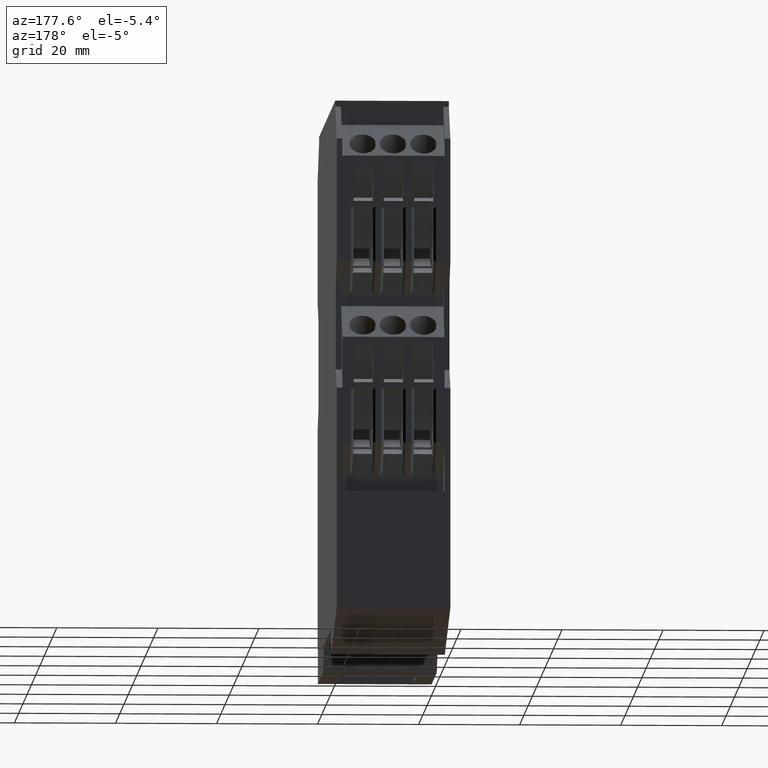
[diagram: clean part render]
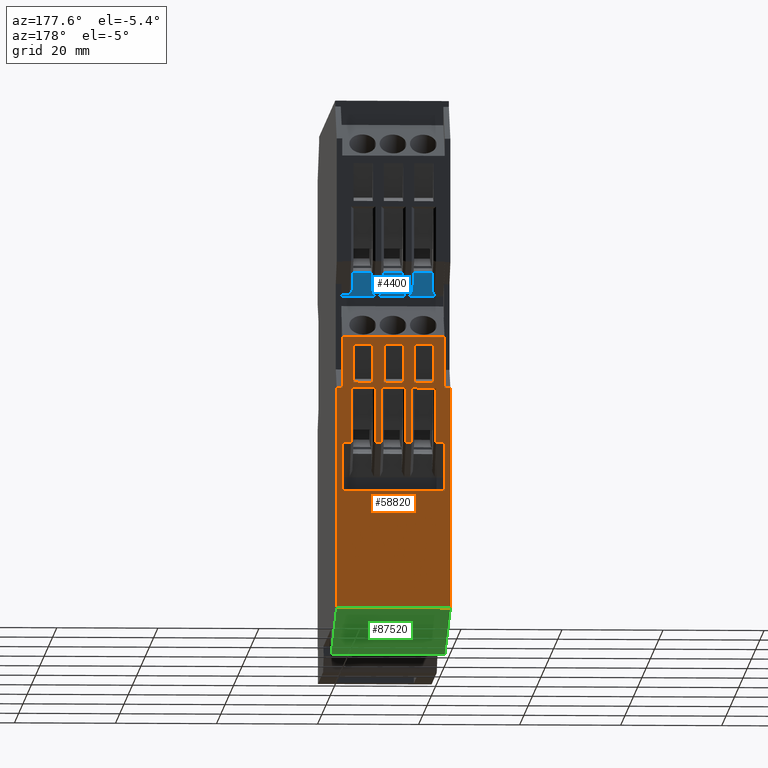
[diagram: same view with three faces highlighted in distinct colors, each labeled with its STEP entity id]
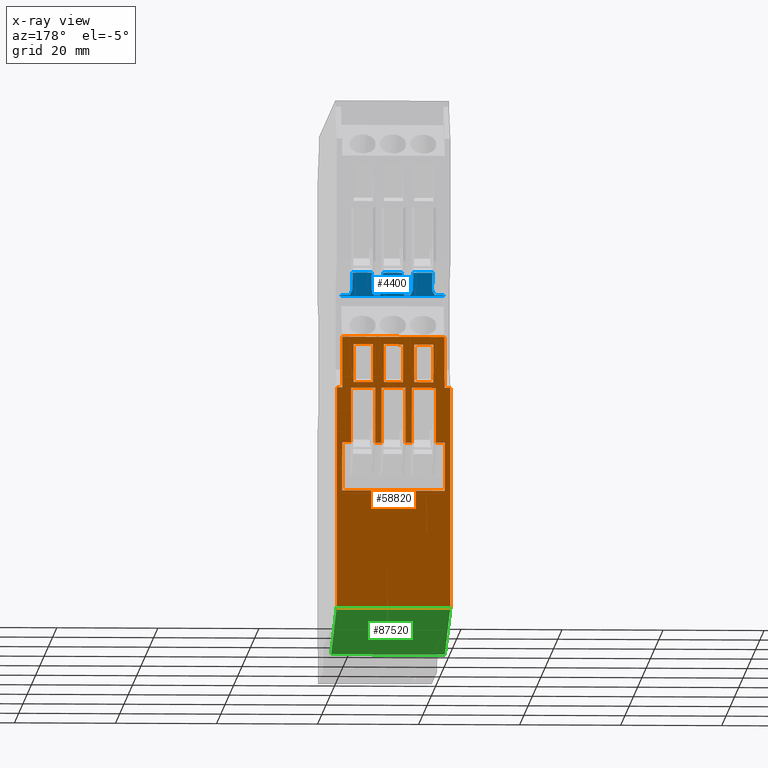
[diagram: x-ray of the same camera — body ghosted, the three highlighted faces saturated]
A machine part, auxiliary view with three faces highlighted in distinct colors.
The next image is the same camera in x-ray (body ghosted, the three faces saturated) — at least one of them is partly hidden behind the body in this view.
Their STEP definitions:

[orange] entity #58820 — the highlighted planar face has unit normal (0, -1, 0).
#1480=CARTESIAN_POINT('',(-11.1893993066638,41.84876394652,
62.3072887580302));
#1490=VERTEX_POINT('',#1480);
#1520=CARTESIAN_POINT('',(-11.1893993066638,41.848763946524,
111.500000000001));
#1530=DIRECTION('',(0.,-3.54716256367738E-14,-1.));
#1540=VECTOR('',#1530,1.);
#1550=LINE('',#1520,#1540);
#1560=CARTESIAN_POINT('',(-11.1893993066638,41.8487639465216,
105.999999999998));
#1570=VERTEX_POINT('',#1560);
#1580=EDGE_CURVE('',#1570,#1490,#1550,.T.);
#55920=CARTESIAN_POINT('',(-11.1893993066638,41.84876394652,
62.3072887580302));
#55930=DIRECTION('',(0.,-1.,3.54716256367738E-14));
#55940=DIRECTION('',(0.,-3.54716256367738E-14,-1.));
#55950=AXIS2_PLACEMENT_3D('',#55920,#55930,#55940);
#55960=PLANE('',#55950);
#55970=CARTESIAN_POINT('',(1.96060069333618,41.8487639465213,0.));
#55980=DIRECTION('',(0.,3.54161144855425E-14,1.));
#55990=VECTOR('',#55980,1.);
#56000=LINE('',#55970,#55990);
#56010=CARTESIAN_POINT('',(1.96060069333618,41.8487639465251,
107.089162713876));
#56020=VERTEX_POINT('',#56010);
#56030=CARTESIAN_POINT('',(1.96060069333618,41.8487639465254,
114.607301309887));
#56040=VERTEX_POINT('',#56030);
#56050=EDGE_CURVE('',#56020,#56040,#56000,.T.);
#56060=ORIENTED_EDGE('',*,*,#56050,.T.);
#56070=CARTESIAN_POINT('',(0.,41.8487639465251,107.089162713876));
#56080=DIRECTION('',(-1.,1.78300435397055E-18,3.46944695195352E-18));
#56090=VECTOR('',#56080,1.);
#56100=LINE('',#56070,#56090);
#56110=CARTESIAN_POINT('',(-1.83939930666382,41.8487639465251,
107.089162713876));
#56120=VERTEX_POINT('',#56110);
#56130=EDGE_CURVE('',#56020,#56120,#56100,.T.);
#56140=ORIENTED_EDGE('',*,*,#56130,.F.);
#56150=CARTESIAN_POINT('',(-1.83939930666382,41.8487639465213,0.));
#56160=DIRECTION('',(0.,-3.54161144855425E-14,-1.));
#56170=VECTOR('',#56160,1.);
#56180=LINE('',#56150,#56170);
#56190=CARTESIAN_POINT('',(-1.83939930666382,41.8487639465254,
114.607301309887));
#56200=VERTEX_POINT('',#56190);
#56210=EDGE_CURVE('',#56200,#56120,#56180,.T.);
#56220=ORIENTED_EDGE('',*,*,#56210,.T.);
#56230=CARTESIAN_POINT('',(0.,41.8487639465254,114.607301309887));
#56240=DIRECTION('',(-1.,1.7830043539695E-18,-2.61895788750554E-17));
#56250=VECTOR('',#56240,1.);
#56260=LINE('',#56230,#56250);
#56270=EDGE_CURVE('',#56040,#56200,#56260,.T.);
#56280=ORIENTED_EDGE('',*,*,#56270,.T.);
#56290=EDGE_LOOP('',(#56280,#56220,#56140,#56060));
#56300=FACE_BOUND('',#56290,.T.);
#56310=CARTESIAN_POINT('',(0.,41.8487639465975,95.1094070233404));
#56320=DIRECTION('',(1.,-1.78300435397005E-18,3.46944695195384E-18));
#56330=VECTOR('',#56320,1.);
#56340=LINE('',#56310,#56330);
#56350=CARTESIAN_POINT('',(-10.0893993066638,41.8487639465212,
95.1094070232745));
#56360=VERTEX_POINT('',#56350);
#56370=CARTESIAN_POINT('',(-8.33939930666381,41.8487639465975,
95.1094070233404));
#56380=VERTEX_POINT('',#56370);
#56390=EDGE_CURVE('',#56360,#56380,#56340,.T.);
#56400=ORIENTED_EDGE('',*,*,#56390,.F.);
#56410=CARTESIAN_POINT('',(-8.33939930659106,41.8487639465213,0.));
#56420=DIRECTION('',(7.80625564189552E-16,3.54161144855425E-14,1.));
#56430=VECTOR('',#56420,1.);
#56440=LINE('',#56410,#56430);
#56450=CARTESIAN_POINT('',(-8.33939930659097,41.8487639465251,
105.992896055162));
#56460=VERTEX_POINT('',#56450);
#56470=EDGE_CURVE('',#56380,#56460,#56440,.T.);
#56480=ORIENTED_EDGE('',*,*,#56470,.F.);
#56490=CARTESIAN_POINT('',(0.,41.8487639465251,105.992896055111));
#56500=DIRECTION('',(-1.,1.78300435397055E-18,3.46944695195378E-18));
#56510=VECTOR('',#56500,1.);
#56520=LINE('',#56490,#56510);
#56530=CARTESIAN_POINT('',(-3.53939930673666,41.8487639465251,
105.992896055162));
#56540=VERTEX_POINT('',#56530);
#56550=EDGE_CURVE('',#56540,#56460,#56520,.T.);
#56560=ORIENTED_EDGE('',*,*,#56550,.T.);
#56570=CARTESIAN_POINT('',(-3.53939930673657,41.8487639465213,0.));
#56580=DIRECTION('',(7.73686670285644E-16,-3.54161144855425E-14,-1.));
#56590=VECTOR('',#56580,1.);
#56600=LINE('',#56570,#56590);
#56610=CARTESIAN_POINT('',(-3.53939930666381,41.8487639465975,
95.1094070233404));
#56620=VERTEX_POINT('',#56610);
#56630=EDGE_CURVE('',#56540,#56620,#56600,.T.);
#56640=ORIENTED_EDGE('',*,*,#56630,.F.);
#56650=CARTESIAN_POINT('',(-2.33939930661493,41.8487639465647,
95.1094070233108));
#56660=VERTEX_POINT('',#56650);
#56670=EDGE_CURVE('',#56620,#56660,#56340,.T.);
#56680=ORIENTED_EDGE('',*,*,#56670,.F.);
#56690=CARTESIAN_POINT('',(-2.33939930659106,41.8487639465213,0.));
#56700=DIRECTION('',(-7.80625564189554E-16,-3.54161144855425E-14,-1.));
#56710=VECTOR('',#56700,1.);
#56720=LINE('',#56690,#56710);
#56730=CARTESIAN_POINT('',(-2.33939930659097,41.8487639465251,
105.992896055162));
#56740=VERTEX_POINT('',#56730);
#56750=EDGE_CURVE('',#56740,#56660,#56720,.T.);
#56760=ORIENTED_EDGE('',*,*,#56750,.T.);
#56770=CARTESIAN_POINT('',(0.,41.8487639465251,105.992896055111));
#56780=DIRECTION('',(-1.,1.78300435397055E-18,3.46944695195378E-18));
#56790=VECTOR('',#56780,1.);
#56800=LINE('',#56770,#56790);
#56810=CARTESIAN_POINT('',(2.46060069333618,41.8487639465251,
105.992896055111));
#56820=VERTEX_POINT('',#56810);
#56830=EDGE_CURVE('',#56820,#56740,#56800,.T.);
#56840=ORIENTED_EDGE('',*,*,#56830,.T.);
#56850=CARTESIAN_POINT('',(2.46060069326343,41.8487639465213,0.));
#56860=DIRECTION('',(7.73686670285647E-16,-3.54161144855425E-14,-1.));
#56870=VECTOR('',#56860,1.);
#56880=LINE('',#56850,#56870);
#56890=CARTESIAN_POINT('',(2.46060069333618,41.8487639465247,
95.1094070232087));
#56900=VERTEX_POINT('',#56890);
#56910=EDGE_CURVE('',#56820,#56900,#56880,.T.);
#56920=ORIENTED_EDGE('',*,*,#56910,.F.);
#56930=CARTESIAN_POINT('',(0.,41.8487639465247,95.1094070232087));
#56940=DIRECTION('',(-1.,1.78300435397055E-18,3.46944695195383E-18));
#56950=VECTOR('',#56940,1.);
#56960=LINE('',#56930,#56950);
#56970=CARTESIAN_POINT('',(3.66060069333618,41.8487639465247,
95.1094070232087));
#56980=VERTEX_POINT('',#56970);
#56990=EDGE_CURVE('',#56980,#56900,#56960,.T.);
#57000=ORIENTED_EDGE('',*,*,#56990,.T.);
#57010=CARTESIAN_POINT('',(3.66060069340895,41.8487639465213,0.));
#57020=DIRECTION('',(-7.80625564189554E-16,-3.54161144855425E-14,-1.));
#57030=VECTOR('',#57020,1.);
#57040=LINE('',#57010,#57030);
#57050=CARTESIAN_POINT('',(3.66060069333618,41.8487639465251,
105.992896055111));
#57060=VERTEX_POINT('',#57050);
#57070=EDGE_CURVE('',#57060,#56980,#57040,.T.);
#57080=ORIENTED_EDGE('',*,*,#57070,.T.);
#57090=CARTESIAN_POINT('',(0.,41.8487639465251,105.992896055111));
#57100=DIRECTION('',(-1.,1.78300435397055E-18,3.46944695195378E-18));
#57110=VECTOR('',#57100,1.);
#57120=LINE('',#57090,#57110);
#57130=CARTESIAN_POINT('',(8.46060069333619,41.8487639465251,
105.992896055111));
#57140=VERTEX_POINT('',#57130);
#57150=EDGE_CURVE('',#57140,#57060,#57120,.T.);
#57160=ORIENTED_EDGE('',*,*,#57150,.T.);
#57170=CARTESIAN_POINT('',(8.46060069326342,41.8487639465213,0.));
#57180=DIRECTION('',(7.73686670285646E-16,-3.54161144855425E-14,-1.));
#57190=VECTOR('',#57180,1.);
#57200=LINE('',#57170,#57190);
#57210=CARTESIAN_POINT('',(8.46060069328731,41.8487639465647,
95.1094070233108));
#57220=VERTEX_POINT('',#57210);
#57230=EDGE_CURVE('',#57140,#57220,#57200,.T.);
#57240=ORIENTED_EDGE('',*,*,#57230,.F.);
#57250=CARTESIAN_POINT('',(0.121201386672368,41.8487639465247,
95.1094070232746));
#57260=DIRECTION('',(1.,-1.7830043539703E-18,3.46944695195361E-18));
#57270=VECTOR('',#57260,1.);
#57280=LINE('',#57250,#57270);
#57290=CARTESIAN_POINT('',(10.2106006933362,41.8487639465212,
95.1094070232714));
#57300=VERTEX_POINT('',#57290);
#57310=EDGE_CURVE('',#57220,#57300,#57280,.T.);
#57320=ORIENTED_EDGE('',*,*,#57310,.F.);
#57330=CARTESIAN_POINT('',(10.2106006933362,41.8487639465178,0.));
#57340=DIRECTION('',(0.,-3.54716256367738E-14,-1.));
#57350=VECTOR('',#57340,1.);
#57360=LINE('',#57330,#57350);
#57370=CARTESIAN_POINT('',(10.2106006933362,41.8487639465208,
85.5572887580313));
#57380=VERTEX_POINT('',#57370);
#57390=EDGE_CURVE('',#57300,#57380,#57360,.T.);
#57400=ORIENTED_EDGE('',*,*,#57390,.F.);
#57410=CARTESIAN_POINT('',(0.,41.8487639465208,85.5572887580313));
#57420=DIRECTION('',(1.,0.,0.));
#57430=VECTOR('',#57420,1.);
#57440=LINE('',#57410,#57430);
#57450=CARTESIAN_POINT('',(-10.0893993066638,41.8487639465208,
85.5572887580313));
#57460=VERTEX_POINT('',#57450);
#57470=EDGE_CURVE('',#57460,#57380,#57440,.T.);
#57480=ORIENTED_EDGE('',*,*,#57470,.T.);
#57490=CARTESIAN_POINT('',(-10.0893993066638,41.8487639465178,0.));
#57500=DIRECTION('',(0.,3.54716256367738E-14,1.));
#57510=VECTOR('',#57500,1.);
#57520=LINE('',#57490,#57510);
#57530=EDGE_CURVE('',#57460,#56360,#57520,.T.);
#57540=ORIENTED_EDGE('',*,*,#57530,.F.);
#57550=EDGE_LOOP('',(#57540,#57480,#57400,#57320,#57240,#57160,#57080,
#57000,#56920,#56840,#56760,#56680,#56640,#56560,#56480,#56400));
#57560=FACE_BOUND('',#57550,.T.);
#57570=CARTESIAN_POINT('',(-7.83939930666382,41.8487639465213,0.));
#57580=DIRECTION('',(0.,-3.54161144855425E-14,-1.));
#57590=VECTOR('',#57580,1.);
#57600=LINE('',#57570,#57590);
#57610=CARTESIAN_POINT('',(-7.83939930666382,41.8487639465254,
114.607301309887));
#57620=VERTEX_POINT('',#57610);
#57630=CARTESIAN_POINT('',(-7.83939930666382,41.8487639465251,
107.089162713876));
#57640=VERTEX_POINT('',#57630);
#57650=EDGE_CURVE('',#57620,#57640,#57600,.T.);
#57660=ORIENTED_EDGE('',*,*,#57650,.T.);
#57670=CARTESIAN_POINT('',(0.,41.8487639465254,114.607301309887));
#57680=DIRECTION('',(-1.,1.7830043539695E-18,-2.61895788750554E-17));
#57690=VECTOR('',#57680,1.);
#57700=LINE('',#57670,#57690);
#57710=CARTESIAN_POINT('',(-4.03939930666382,41.8487639465254,
114.607301309887));
#57720=VERTEX_POINT('',#57710);
#57730=EDGE_CURVE('',#57720,#57620,#57700,.T.);
#57740=ORIENTED_EDGE('',*,*,#57730,.T.);
#57750=CARTESIAN_POINT('',(-4.03939930666382,41.8487639465213,0.));
#57760=DIRECTION('',(0.,3.54161144855425E-14,1.));
#57770=VECTOR('',#57760,1.);
#57780=LINE('',#57750,#57770);
#57790=CARTESIAN_POINT('',(-4.03939930666382,41.8487639465251,
107.089162713876));
#57800=VERTEX_POINT('',#57790);
#57810=EDGE_CURVE('',#57800,#57720,#57780,.T.);
#57820=ORIENTED_EDGE('',*,*,#57810,.T.);
#57830=CARTESIAN_POINT('',(0.,41.8487639465251,107.089162713876));
#57840=DIRECTION('',(-1.,1.78300435397055E-18,3.46944695195352E-18));
#57850=VECTOR('',#57840,1.);
#57860=LINE('',#57830,#57850);
#57870=EDGE_CURVE('',#57800,#57640,#57860,.T.);
#57880=ORIENTED_EDGE('',*,*,#57870,.F.);
#57890=EDGE_LOOP('',(#57880,#57820,#57740,#57660));
#57900=FACE_BOUND('',#57890,.T.);
#57910=CARTESIAN_POINT('',(4.16060069333618,41.8487639465213,0.));
#57920=DIRECTION('',(0.,-3.54161144855425E-14,-1.));
#57930=VECTOR('',#57920,1.);
#57940=LINE('',#57910,#57930);
#57950=CARTESIAN_POINT('',(4.16060069333618,41.8487639465254,
114.607301309886));
#57960=VERTEX_POINT('',#57950);
#57970=CARTESIAN_POINT('',(4.16060069333618,41.8487639465251,
107.089162713876));
#57980=VERTEX_POINT('',#57970);
#57990=EDGE_CURVE('',#57960,#57980,#57940,.T.);
#58000=ORIENTED_EDGE('',*,*,#57990,.T.);
#58010=CARTESIAN_POINT('',(0.,41.8487639465254,114.607301309886));
#58020=DIRECTION('',(-1.,1.7830043539695E-18,-2.61895788750554E-17));
#58030=VECTOR('',#58020,1.);
#58040=LINE('',#58010,#58030);
#58050=CARTESIAN_POINT('',(7.96060069333618,41.8487639465254,
114.607301309886));
#58060=VERTEX_POINT('',#58050);
#58070=EDGE_CURVE('',#58060,#57960,#58040,.T.);
#58080=ORIENTED_EDGE('',*,*,#58070,.T.);
#58090=CARTESIAN_POINT('',(7.96060069333618,41.8487639465213,0.));
#58100=DIRECTION('',(0.,3.54161144855425E-14,1.));
#58110=VECTOR('',#58100,1.);
#58120=LINE('',#58090,#58110);
#58130=CARTESIAN_POINT('',(7.96060069333618,41.8487639465251,
107.089162713876));
#58140=VERTEX_POINT('',#58130);
#58150=EDGE_CURVE('',#58140,#58060,#58120,.T.);
#58160=ORIENTED_EDGE('',*,*,#58150,.T.);
#58170=CARTESIAN_POINT('',(0.,41.8487639465251,107.089162713876));
#58180=DIRECTION('',(-1.,1.78300435397055E-18,3.46944695195352E-18));
#58190=VECTOR('',#58180,1.);
#58200=LINE('',#58170,#58190);
#58210=EDGE_CURVE('',#58140,#57980,#58200,.T.);
#58220=ORIENTED_EDGE('',*,*,#58210,.F.);
#58230=EDGE_LOOP('',(#58220,#58160,#58080,#58000));
#58240=FACE_BOUND('',#58230,.T.);
#58250=CARTESIAN_POINT('',(0.,41.84876394652,62.3072887580303));
#58260=DIRECTION('',(1.,0.,0.));
#58270=VECTOR('',#58260,1.);
#58280=LINE('',#58250,#58270);
#58290=CARTESIAN_POINT('',(11.3106006933362,41.84876394652,
62.3072887580302));
#58300=VERTEX_POINT('',#58290);
#58310=EDGE_CURVE('',#1490,#58300,#58280,.T.);
#58320=ORIENTED_EDGE('',*,*,#58310,.F.);
#58330=CARTESIAN_POINT('',(11.3106006933362,41.8487639465178,0.));
#58340=DIRECTION('',(0.,3.54716256367738E-14,1.));
#58350=VECTOR('',#58340,1.);
#58360=LINE('',#58330,#58350);
#58370=CARTESIAN_POINT('',(11.3106006933362,41.8487639465232,
105.999999999998));
#58380=VERTEX_POINT('',#58370);
#58390=EDGE_CURVE('',#58300,#58380,#58360,.T.);
#58400=ORIENTED_EDGE('',*,*,#58390,.F.);
#58410=CARTESIAN_POINT('',(0.,41.8487639465251,105.999999999997));
#58420=DIRECTION('',(-1.,0.,0.));
#58430=VECTOR('',#58420,1.);
#58440=LINE('',#58410,#58430);
#58450=CARTESIAN_POINT('',(10.1606006933362,41.8487639465251,
105.999999999997));
#58460=VERTEX_POINT('',#58450);
#58470=EDGE_CURVE('',#58380,#58460,#58440,.T.);
#58480=ORIENTED_EDGE('',*,*,#58470,.F.);
#58490=CARTESIAN_POINT('',(10.1606006933362,41.8487639465213,
6.31698065353822E-14));
#58500=DIRECTION('',(3.46944695195361E-18,-3.54161144855425E-14,-1.));
#58510=VECTOR('',#58500,1.);
#58520=LINE('',#58490,#58510);
#58530=CARTESIAN_POINT('',(10.1606006933362,41.8487639465253,
116.097547264387));
#58540=VERTEX_POINT('',#58530);
#58550=EDGE_CURVE('',#58540,#58460,#58520,.T.);
#58560=ORIENTED_EDGE('',*,*,#58550,.T.);
#58570=CARTESIAN_POINT('',(0.121201386672368,41.8487639465254,
116.097547264387));
#58580=DIRECTION('',(1.,-1.7830043539703E-18,3.46944695195361E-18));
#58590=VECTOR('',#58580,1.);
#58600=LINE('',#58570,#58590);
#58610=CARTESIAN_POINT('',(-10.0393993066638,41.8487639465219,
116.09754726439));
#58620=VERTEX_POINT('',#58610);
#58630=EDGE_CURVE('',#58620,#58540,#58600,.T.);
#58640=ORIENTED_EDGE('',*,*,#58630,.T.);
#58650=CARTESIAN_POINT('',(-10.0393993066638,41.8487639465254,
114.476404896141));
#58660=DIRECTION('',(-3.46944695195355E-18,3.54161144855425E-14,1.));
#58670=VECTOR('',#58660,1.);
#58680=LINE('',#58650,#58670);
#58690=CARTESIAN_POINT('',(-10.0393993066638,41.8487639465216,
105.999999999997));
#58700=VERTEX_POINT('',#58690);
#58710=EDGE_CURVE('',#58700,#58620,#58680,.T.);
#58720=ORIENTED_EDGE('',*,*,#58710,.T.);
#58730=CARTESIAN_POINT('',(0.,41.8487639465251,105.999999999997));
#58740=DIRECTION('',(1.,0.,0.));
#58750=VECTOR('',#58740,1.);
#58760=LINE('',#58730,#58750);
#58770=EDGE_CURVE('',#1570,#58700,#58760,.T.);
#58780=ORIENTED_EDGE('',*,*,#58770,.T.);
#58790=ORIENTED_EDGE('',*,*,#1580,.F.);
#58800=EDGE_LOOP('',(#58790,#58780,#58720,#58640,#58560,#58480,#58400,
#58320));
#58810=FACE_OUTER_BOUND('',#58800,.T.);
#58820=ADVANCED_FACE('',(#56300,#57560,#57900,#58240,#58810),#55960,.F.)
;

[blue] entity #4400 — the highlighted planar face has unit normal (-0, -0.9397, 0.342).
#2570=CARTESIAN_POINT('',(-10.0393993066638,35.033576735695,
124.825714360528));
#2580=DIRECTION('',(-2.86209677802311E-18,-0.939692620785897,
0.342020143325699));
#2590=DIRECTION('',(2.65039029426366E-18,-0.342020143325699,
-0.939692620785897));
#2600=AXIS2_PLACEMENT_3D('',#2570,#2580,#2590);
#2610=PLANE('',#2600);
#2620=CARTESIAN_POINT('',(70.6707379286898,-10.3992677624841,0.));
#2630=DIRECTION('',(-0.423610037046828,0.309817118265942,
0.851215536596092));
#2640=VECTOR('',#2630,1.);
#2650=LINE('',#2620,#2640);
#2660=CARTESIAN_POINT('',(8.46060069333619,35.0995725849286,
125.007036466075));
#2670=VERTEX_POINT('',#2660);
#2680=CARTESIAN_POINT('',(7.96060069328635,35.4652592910633,
126.011752433774));
#2690=VERTEX_POINT('',#2680);
#2700=EDGE_CURVE('',#2670,#2690,#2650,.T.);
#2710=ORIENTED_EDGE('',*,*,#2700,.F.);
#2720=CARTESIAN_POINT('',(7.96060069333618,-10.3992677624841,0.));
#2730=DIRECTION('',(0.,0.342020143325699,0.939692620785897));
#2740=VECTOR('',#2730,1.);
#2750=LINE('',#2720,#2740);
#2760=CARTESIAN_POINT('',(7.96060069333618,36.6758188983103,
129.337737619589));
#2770=VERTEX_POINT('',#2760);
#2780=EDGE_CURVE('',#2690,#2770,#2750,.T.);
#2790=ORIENTED_EDGE('',*,*,#2780,.F.);
#2800=CARTESIAN_POINT('',(0.,36.6758188983723,129.337737619559));
#2810=DIRECTION('',(-1.,1.34035048051937E-18,3.68258267938175E-18));
#2820=VECTOR('',#2810,1.);
#2830=LINE('',#2800,#2820);
#2840=CARTESIAN_POINT('',(4.16060069333618,36.6758188983103,
129.337737619589));
#2850=VERTEX_POINT('',#2840);
#2860=EDGE_CURVE('',#2770,#2850,#2830,.T.);
#2870=ORIENTED_EDGE('',*,*,#2860,.F.);
#2880=CARTESIAN_POINT('',(4.16060069333618,-10.3992677624841,0.));
#2890=DIRECTION('',(0.,0.342020143325699,0.939692620785897));
#2900=VECTOR('',#2890,1.);
#2910=LINE('',#2880,#2900);
#2920=CARTESIAN_POINT('',(4.16060069333618,35.4652592910716,
126.011752433797));
#2930=VERTEX_POINT('',#2920);
#2940=EDGE_CURVE('',#2930,#2850,#2910,.T.);
#2950=ORIENTED_EDGE('',*,*,#2940,.T.);
#2960=CARTESIAN_POINT('',(-58.5495365420173,-10.3992677624841,0.));
#2970=DIRECTION('',(0.423610037046828,0.309817118265942,
0.851215536596092));
#2980=VECTOR('',#2970,1.);
#2990=LINE('',#2960,#2980);
#3000=CARTESIAN_POINT('',(3.66060069333618,35.0995725849286,
125.007036466075));
#3010=VERTEX_POINT('',#3000);
#3020=EDGE_CURVE('',#3010,#2930,#2990,.T.);
#3030=ORIENTED_EDGE('',*,*,#3020,.T.);
#3040=CARTESIAN_POINT('',(0.,35.0995725850371,125.007036466173));
#3050=DIRECTION('',(1.,2.75675947526141E-18,7.57413440914752E-18));
#3060=VECTOR('',#3050,1.);
#3070=LINE('',#3040,#3060);
#3080=CARTESIAN_POINT('',(2.46060069333618,35.0995725849286,
125.007036466075));
#3090=VERTEX_POINT('',#3080);
#3100=EDGE_CURVE('',#3090,#3010,#3070,.T.);
#3110=ORIENTED_EDGE('',*,*,#3100,.T.);
#3120=CARTESIAN_POINT('',(64.6707379286897,-10.3992677624841,0.));
#3130=DIRECTION('',(-0.423610037046828,0.309817118265942,
0.851215536596092));
#3140=VECTOR('',#3130,1.);
#3150=LINE('',#3120,#3140);
#3160=CARTESIAN_POINT('',(1.96060069333618,35.4652592910714,
126.011752433797));
#3170=VERTEX_POINT('',#3160);
#3180=EDGE_CURVE('',#3090,#3170,#3150,.T.);
#3190=ORIENTED_EDGE('',*,*,#3180,.F.);
#3200=CARTESIAN_POINT('',(1.96060069333618,-10.3992677624841,0.));
#3210=DIRECTION('',(0.,0.342020143325699,0.939692620785897));
#3220=VECTOR('',#3210,1.);
#3230=LINE('',#3200,#3220);
#3240=CARTESIAN_POINT('',(1.96060069333618,36.675818898308,
129.337737619583));
#3250=VERTEX_POINT('',#3240);
#3260=EDGE_CURVE('',#3170,#3250,#3230,.T.);
#3270=ORIENTED_EDGE('',*,*,#3260,.F.);
#3280=CARTESIAN_POINT('',(0.,36.6758188983722,129.337737619559));
#3290=DIRECTION('',(-1.,1.34035048051937E-18,3.68258267938175E-18));
#3300=VECTOR('',#3290,1.);
#3310=LINE('',#3280,#3300);
#3320=CARTESIAN_POINT('',(-1.83939930666382,36.675818898308,
129.337737619583));
#3330=VERTEX_POINT('',#3320);
#3340=EDGE_CURVE('',#3250,#3330,#3310,.T.);
#3350=ORIENTED_EDGE('',*,*,#3340,.F.);
#3360=CARTESIAN_POINT('',(-1.83939930666382,-10.3992677624841,0.));
#3370=DIRECTION('',(0.,0.342020143325699,0.939692620785897));
#3380=VECTOR('',#3370,1.);
#3390=LINE('',#3360,#3380);
#3400=CARTESIAN_POINT('',(-1.83939930666382,35.4652592910716,
126.011752433797));
#3410=VERTEX_POINT('',#3400);
#3420=EDGE_CURVE('',#3410,#3330,#3390,.T.);
#3430=ORIENTED_EDGE('',*,*,#3420,.T.);
#3440=CARTESIAN_POINT('',(-64.5495365420173,-10.3992677624841,0.));
#3450=DIRECTION('',(0.423610037046828,0.309817118265942,
0.851215536596092));
#3460=VECTOR('',#3450,1.);
#3470=LINE('',#3440,#3460);
#3480=CARTESIAN_POINT('',(-2.33939930659668,35.0995725849419,
125.007036466111));
#3490=VERTEX_POINT('',#3480);
#3500=EDGE_CURVE('',#3490,#3410,#3470,.T.);
#3510=ORIENTED_EDGE('',*,*,#3500,.T.);
#3520=CARTESIAN_POINT('',(0.,35.0995725850371,125.007036466173));
#3530=DIRECTION('',(1.,2.75675947526141E-18,7.57413440914752E-18));
#3540=VECTOR('',#3530,1.);
#3550=LINE('',#3520,#3540);
#3560=CARTESIAN_POINT('',(-3.5393993067535,35.0995725849584,
125.007036466157));
#3570=VERTEX_POINT('',#3560);
#3580=EDGE_CURVE('',#3570,#3490,#3550,.T.);
#3590=ORIENTED_EDGE('',*,*,#3580,.T.);
#3600=CARTESIAN_POINT('',(58.6707379286897,-10.3992677624841,0.));
#3610=DIRECTION('',(-0.423610037046828,0.309817118265942,
0.851215536596092));
#3620=VECTOR('',#3610,1.);
#3630=LINE('',#3600,#3620);
#3640=CARTESIAN_POINT('',(-4.03939930671373,35.4652592910634,
126.011752433775));
#3650=VERTEX_POINT('',#3640);
#3660=EDGE_CURVE('',#3570,#3650,#3630,.T.);
#3670=ORIENTED_EDGE('',*,*,#3660,.F.);
#3680=CARTESIAN_POINT('',(-4.03939930666382,-10.3992677624841,0.));
#3690=DIRECTION('',(0.,0.342020143325699,0.939692620785897));
#3700=VECTOR('',#3690,1.);
#3710=LINE('',#3680,#3700);
#3720=CARTESIAN_POINT('',(-4.03939930666382,36.6758188983103,
129.337737619589));
#3730=VERTEX_POINT('',#3720);
#3740=EDGE_CURVE('',#3650,#3730,#3710,.T.);
#3750=ORIENTED_EDGE('',*,*,#3740,.F.);
#3760=CARTESIAN_POINT('',(0.,36.6758188983722,129.337737619559));
#3770=DIRECTION('',(-1.,1.34035048051937E-18,3.68258267938175E-18));
#3780=VECTOR('',#3770,1.);
#3790=LINE('',#3760,#3780);
#3800=CARTESIAN_POINT('',(-7.83939930666382,36.6758188983103,
129.337737619589));
#3810=VERTEX_POINT('',#3800);
#3820=EDGE_CURVE('',#3730,#3810,#3790,.T.);
#3830=ORIENTED_EDGE('',*,*,#3820,.F.);
#3840=CARTESIAN_POINT('',(-7.83939930666382,-10.3992677624841,0.));
#3850=DIRECTION('',(0.,-0.342020143325699,-0.939692620785897));
#3860=VECTOR('',#3850,1.);
#3870=LINE('',#3840,#3860);
#3880=CARTESIAN_POINT('',(-7.83939930666382,35.4652592910711,
126.011752433796));
#3890=VERTEX_POINT('',#3880);
#3900=EDGE_CURVE('',#3810,#3890,#3870,.T.);
#3910=ORIENTED_EDGE('',*,*,#3900,.F.);
#3920=CARTESIAN_POINT('',(-70.5495365420174,-10.3992677624841,0.));
#3930=DIRECTION('',(-0.423610037046828,-0.309817118265942,
-0.851215536596092));
#3940=VECTOR('',#3930,1.);
#3950=LINE('',#3920,#3940);
#3960=CARTESIAN_POINT('',(-8.33939930661495,35.0995725849286,
125.007036466075));
#3970=VERTEX_POINT('',#3960);
#3980=EDGE_CURVE('',#3890,#3970,#3950,.T.);
#3990=ORIENTED_EDGE('',*,*,#3980,.F.);
#4000=CARTESIAN_POINT('',(0.,35.0995725849286,125.007036466075));
#4010=DIRECTION('',(-1.,1.7830043539703E-18,-3.46944695195361E-18));
#4020=VECTOR('',#4010,1.);
#4030=LINE('',#4000,#4020);
#4040=CARTESIAN_POINT('',(-10.0893993066638,35.0995725849286,
125.007036466075));
#4050=VERTEX_POINT('',#4040);
#4060=EDGE_CURVE('',#3970,#4050,#4030,.T.);
#4070=ORIENTED_EDGE('',*,*,#4060,.F.);
#4080=CARTESIAN_POINT('',(-10.0893993066638,-10.3992677625569,0.));
#4090=DIRECTION('',(0.,-0.342020143325699,-0.939692620785897));
#4100=VECTOR('',#4090,1.);
#4110=LINE('',#4080,#4100);
#4120=CARTESIAN_POINT('',(-10.0893993066638,35.033576735695,
124.825714360528));
#4130=VERTEX_POINT('',#4120);
#4140=EDGE_CURVE('',#4050,#4130,#4110,.T.);
#4150=ORIENTED_EDGE('',*,*,#4140,.F.);
#4160=CARTESIAN_POINT('',(0.,35.0335767357678,124.825714360528));
#4170=DIRECTION('',(-1.,0.,0.));
#4180=VECTOR('',#4170,1.);
#4190=LINE('',#4160,#4180);
#4200=CARTESIAN_POINT('',(10.2106006933362,35.033576735695,
124.825714360528));
#4210=VERTEX_POINT('',#4200);
#4220=EDGE_CURVE('',#4210,#4130,#4190,.T.);
#4230=ORIENTED_EDGE('',*,*,#4220,.T.);
#4240=CARTESIAN_POINT('',(10.2106006933362,-10.3992677624841,0.));
#4250=DIRECTION('',(0.,-0.342020143325699,-0.939692620785897));
#4260=VECTOR('',#4250,1.);
#4270=LINE('',#4240,#4260);
#4280=CARTESIAN_POINT('',(10.2106006933362,35.0995725849286,
125.007036466075));
#4290=VERTEX_POINT('',#4280);
#4300=EDGE_CURVE('',#4290,#4210,#4270,.T.);
#4310=ORIENTED_EDGE('',*,*,#4300,.T.);
#4320=CARTESIAN_POINT('',(0.,35.0995725850371,125.007036466173));
#4330=DIRECTION('',(1.,2.75675947526141E-18,7.57413440914752E-18));
#4340=VECTOR('',#4330,1.);
#4350=LINE('',#4320,#4340);
#4360=EDGE_CURVE('',#2670,#4290,#4350,.T.);
#4370=ORIENTED_EDGE('',*,*,#4360,.T.);
#4380=EDGE_LOOP('',(#4370,#4310,#4230,#4150,#4070,#3990,#3910,#3830,
#3750,#3670,#3590,#3510,#3430,#3350,#3270,#3190,#3110,#3030,#2950,#2870,
#2790,#2710));
#4390=FACE_OUTER_BOUND('',#4380,.T.);
#4400=ADVANCED_FACE('',(#4390),#2610,.F.);

[green] entity #87520 — the highlighted planar face has unit normal (0, -0.25, 0.9682).
#1400=CARTESIAN_POINT('',(-11.1893993066638,15.4827385427368,
55.5000000000004));
#1410=VERTEX_POINT('',#1400);
#1440=CARTESIAN_POINT('',(-11.1893993066638,15.4827385427368,
55.5000000000004));
#1450=DIRECTION('',(0.,0.96824930087528,0.249986582348995));
#1460=VECTOR('',#1450,1.);
#1470=LINE('',#1440,#1460);
#1480=CARTESIAN_POINT('',(-11.1893993066638,41.84876394652,
62.3072887580302));
#1490=VERTEX_POINT('',#1480);
#1500=EDGE_CURVE('',#1410,#1490,#1470,.T.);
#58250=CARTESIAN_POINT('',(0.,41.84876394652,62.3072887580303));
#58260=DIRECTION('',(1.,0.,0.));
#58270=VECTOR('',#58260,1.);
#58280=LINE('',#58250,#58270);
#58290=CARTESIAN_POINT('',(11.3106006933362,41.84876394652,
62.3072887580302));
#58300=VERTEX_POINT('',#58290);
#58310=EDGE_CURVE('',#1490,#58300,#58280,.T.);
#87160=CARTESIAN_POINT('',(11.3106006933362,15.4827385427368,
55.5000000000004));
#87170=VERTEX_POINT('',#87160);
#87200=CARTESIAN_POINT('',(0.,15.4827385427368,55.5000000000004));
#87210=DIRECTION('',(1.,0.,0.));
#87220=VECTOR('',#87210,1.);
#87230=LINE('',#87200,#87220);
#87240=EDGE_CURVE('',#1410,#87170,#87230,.T.);
#87360=CARTESIAN_POINT('',(-11.1893993066638,15.4827385427368,
55.5000000000004));
#87370=DIRECTION('',(0.,-0.249986582348995,0.96824930087528));
#87380=DIRECTION('',(0.,-0.96824930087528,-0.249986582348995));
#87390=AXIS2_PLACEMENT_3D('',#87360,#87370,#87380);
#87400=PLANE('',#87390);
#87410=ORIENTED_EDGE('',*,*,#1500,.T.);
#87420=ORIENTED_EDGE('',*,*,#87240,.F.);
#87430=CARTESIAN_POINT('',(11.3106006933362,0.,51.5026029554552));
#87440=DIRECTION('',(0.,0.96824930087528,0.249986582348995));
#87450=VECTOR('',#87440,1.);
#87460=LINE('',#87430,#87450);
#87470=EDGE_CURVE('',#87170,#58300,#87460,.T.);
#87480=ORIENTED_EDGE('',*,*,#87470,.F.);
#87490=ORIENTED_EDGE('',*,*,#58310,.T.);
#87500=EDGE_LOOP('',(#87490,#87480,#87420,#87410));
#87510=FACE_OUTER_BOUND('',#87500,.T.);
#87520=ADVANCED_FACE('',(#87510),#87400,.F.);